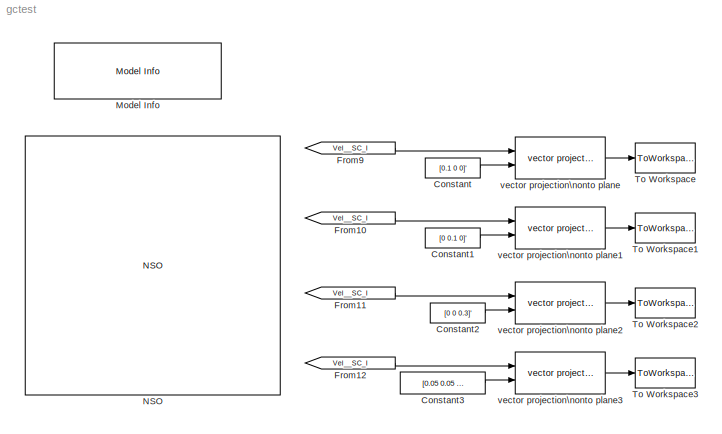
MODEL gctest
KIND model
CONFIG PreLoadFcn = \n
CONFIG StartFcn = \n\n
BLOCK [Constant] Constant
  Value = [0.1 0 0]'
BLOCK [Constant] Constant1
  Value = [0 0.1 0]'
BLOCK [Constant] Constant2
  Value = [0 0 0.3]'
BLOCK [Constant] Constant3
  Value = [0.05 0.05 0.15]'
BLOCK [From] From10
  CloseFcn = tagdialog Close
  GotoTag = Vel__SC_I
BLOCK [From] From11
  CloseFcn = tagdialog Close
  GotoTag = Vel__SC_I
BLOCK [From] From12
  CloseFcn = tagdialog Close
  GotoTag = Vel__SC_I
BLOCK [From] From9
  CloseFcn = tagdialog Close
  GotoTag = Vel__SC_I
BLOCK [Reference] Model Info  REF=simulink/Model-Wide\nUtilities/Model Info
  BlockCM = None
  DisplayStringWithTags = sun to eclipse : 2452315.560376\n32 sec. before : 2452315.56\neclipse to sun : 2452315.513363
  Frame = on
  HorizontalTextAlignment = Center
  InitialBlockCM = None
  LeftAlignmentValue = 0.5
  MaskDisplayString = sun to eclipse : 2452315.560376\\n32 sec. before : 2452315.56\\neclipse to sun : 2452315.513363
  Ports = []
  ShowPortLabels = on
  SourceBlock = simulink/Model-Wide\nUtilities/Model Info
  SourceBlockDiagram = gctest
  SourceType = CMBlock
  TagMaxNumber = 20
BLOCK [Reference] NSO  REF=components_lib/NSO  (lib defined in mdl_419550584dda)
  Cd = 2
  Description = AAUSAT-II Model
  Dim = [0.1 0.1 0.3]
  Ports = [4, 4]
  ShowPortLabels = on
  SourceBlock = components_lib/NSO
  Tag = AAUSAT-II Model
  alb_emu_enabled = off
  enable_dist = off
  enable_sensor_emulation = off
  inertia_c = [25 25 5]/1e3
  inertia_d = [42.3 42.3 28.4]/1e3
  init_jd = 2452315.56
  mass_sc = 3
  q_init_s_i = [sqrt(0.5) 0 0 sqrt(0.5)]
  q_s_c = [0 0 0 1]
  r_com_s = [0.05 0.05 0.15]
  r_com_s_deployed = [0.05 0.05 0.125]
  rho = 9.25e-13
  sat_temp_start = 0
  w_init_s = [0.1 0.1 0.1]*0
BLOCK [ToWorkspace] To Workspace
  MaxDataPoints = inf
  SampleTime = -1
  SaveFormat = Structure
  VariableName = px
BLOCK [ToWorkspace] To Workspace1
  MaxDataPoints = inf
  SampleTime = -1
  SaveFormat = Structure
  VariableName = py
BLOCK [ToWorkspace] To Workspace2
  MaxDataPoints = inf
  SampleTime = -1
  SaveFormat = Structure
  VariableName = pz
BLOCK [ToWorkspace] To Workspace3
  MaxDataPoints = inf
  SampleTime = -1
  SaveFormat = Structure
  VariableName = pGC
BLOCK [Reference] vector projection\nonto plane  REF=components_lib/Math utilities/Vector operations/vector projection\nonto plane  (lib defined in mdl_419550584dda)
  Ports = [2, 1]
  ShowPortLabels = on
  SourceBlock = components_lib/Math utilities/Vector operations/vector projection\nonto plane
  SourceType = SubSystem
BLOCK [Reference] vector projection\nonto plane1  REF=components_lib/Math utilities/Vector operations/vector projection\nonto plane  (lib defined in mdl_419550584dda)
  Ports = [2, 1]
  ShowPortLabels = on
  SourceBlock = components_lib/Math utilities/Vector operations/vector projection\nonto plane
  SourceType = SubSystem
BLOCK [Reference] vector projection\nonto plane2  REF=components_lib/Math utilities/Vector operations/vector projection\nonto plane  (lib defined in mdl_419550584dda)
  Ports = [2, 1]
  ShowPortLabels = on
  SourceBlock = components_lib/Math utilities/Vector operations/vector projection\nonto plane
  SourceType = SubSystem
BLOCK [Reference] vector projection\nonto plane3  REF=components_lib/Math utilities/Vector operations/vector projection\nonto plane  (lib defined in mdl_419550584dda)
  Ports = [2, 1]
  ShowPortLabels = on
  SourceBlock = components_lib/Math utilities/Vector operations/vector projection\nonto plane
  SourceType = SubSystem
LINE Constant1:1 -> vector projection\nonto plane1:2
LINE Constant2:1 -> vector projection\nonto plane2:2
LINE Constant3:1 -> vector projection\nonto plane3:2
LINE Constant:1 -> vector projection\nonto plane:2
LINE From10:1 -> vector projection\nonto plane1:1
LINE From11:1 -> vector projection\nonto plane2:1
LINE From12:1 -> vector projection\nonto plane3:1
LINE From9:1 -> vector projection\nonto plane:1
LINE vector projection\nonto plane1:1 -> To Workspace1:1
LINE vector projection\nonto plane2:1 -> To Workspace2:1
LINE vector projection\nonto plane3:1 -> To Workspace3:1
LINE vector projection\nonto plane:1 -> To Workspace:1
